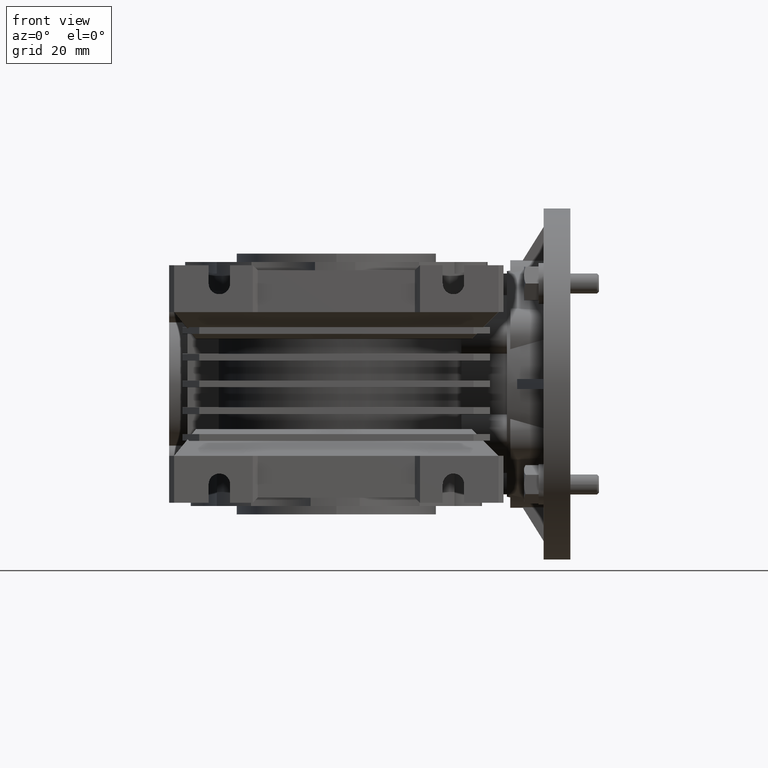
[diagram: clean part render]
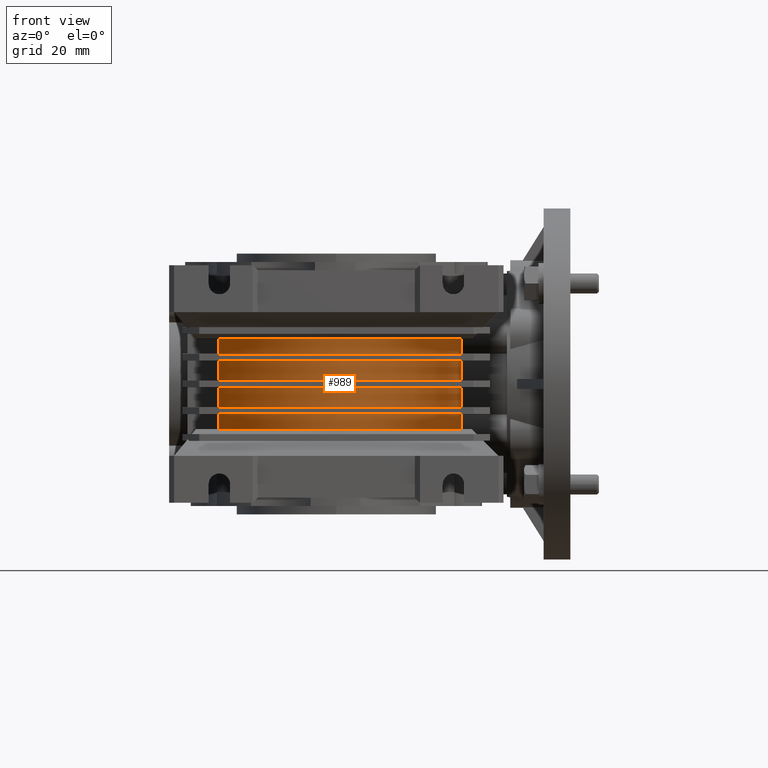
[diagram: same view with one face highlighted and labeled with its STEP entity id]
A machine part, front view. The second image highlights one B-rep face of the part: STEP entity #989.
In plain terms, the highlighted cylindrical surface (partial cylindrical patch) has radius 37.5 mm, axis along (0, 0, 1).
Its self-contained STEP definition (entity closure, byte-faithful):
#34 = CARTESIAN_POINT ( 'NONE',  ( 33.89242612881256633, 16.05101986730154806, -12.48156505676057648 ) ) ;
#349 = ORIENTED_EDGE ( 'NONE', *, *, #14885, .T. ) ;
#629 = ORIENTED_EDGE ( 'NONE', *, *, #16727, .T. ) ;
#703 = CARTESIAN_POINT ( 'NONE',  ( 0.000000000000000000, 0.000000000000000000, 7.000000000000000000 ) ) ;
#859 = DIRECTION ( 'NONE',  ( 0.000000000000000000, 0.000000000000000000, -1.000000000000000000 ) ) ;
#901 = CARTESIAN_POINT ( 'NONE',  ( 37.15022514692150679, 5.109870011364259668, -9.000000000000000000 ) ) ;
#989 = ADVANCED_FACE ( 'NONE', ( #15022 ), #14862, .T. ) ;
#1027 = EDGE_CURVE ( 'NONE', #3531, #28164, #2105, .T. ) ;
#1144 = EDGE_CURVE ( 'NONE', #10015, #4734, #4898, .T. ) ;
#1167 = ORIENTED_EDGE ( 'NONE', *, *, #11697, .T. ) ;
#1199 = CARTESIAN_POINT ( 'NONE',  ( 37.15022514692150679, 5.109870011364259668, 7.000000000000000000 ) ) ;
#1200 = ORIENTED_EDGE ( 'NONE', *, *, #8996, .T. ) ;
#1257 = CARTESIAN_POINT ( 'NONE',  ( 35.95991201780260127, 10.63693701999567587, -11.92872795283150467 ) ) ;
#1411 = CARTESIAN_POINT ( 'NONE',  ( 35.55815069893402836, 11.91214390065728956, -10.28771182583595589 ) ) ;
#2016 = DIRECTION ( 'NONE',  ( 0.000000000000000000, 1.000000000000000000, 0.000000000000000000 ) ) ;
#2043 = CARTESIAN_POINT ( 'NONE',  ( 35.49857564229709084, 12.08880108431705835, 10.14265214825106831 ) ) ;
#2105 = B_SPLINE_CURVE_WITH_KNOTS ( 'NONE', 3,
 ( #8837, #3727, #10712, #13020, #1411, #15646, #15798, #22460, #20125, #27577, #1257, #6362, #20270, #15487, #29881, #22618 ),
 .UNSPECIFIED., .F., .F.,
 ( 4, 2, 2, 2, 2, 2, 2, 4 ),
 ( 7.757919228897728493E-18, 0.001413248006565914240, 0.002119872009848870927, 0.002826496013131827613, 0.003533120016414784299, 0.004239744019697740986, 0.004946368022980697672, 0.005652992026263655226 ),
 .UNSPECIFIED. ) ;
#2192 = DIRECTION ( 'NONE',  ( 0.000000000000000000, 0.000000000000000000, 1.000000000000000000 ) ) ;
#2290 = AXIS2_PLACEMENT_3D ( 'NONE', #11957, #2192, #14098 ) ;
#2336 = CARTESIAN_POINT ( 'NONE',  ( 34.69589230331634155, 14.23211453964517226, -8.148378081426217889 ) ) ;
#2349 = VERTEX_POINT ( 'NONE', #24317 ) ;
#2397 = CARTESIAN_POINT ( 'NONE',  ( -35.17456467392309349, -13.00000000000000000, -39.00000000000000000 ) ) ;
#2451 = VERTEX_POINT ( 'NONE', #7327 ) ;
#2453 = ORIENTED_EDGE ( 'NONE', *, *, #20707, .T. ) ;
#2750 = VECTOR ( 'NONE', #24543, 1000.000000000000000 ) ;
#2813 = ORIENTED_EDGE ( 'NONE', *, *, #14395, .T. ) ;
#2929 = ORIENTED_EDGE ( 'NONE', *, *, #1144, .T. ) ;
#3173 = VERTEX_POINT ( 'NONE', #9515 ) ;
#3251 = CARTESIAN_POINT ( 'NONE',  ( 0.000000000000000000, 0.000000000000000000, -9.000000000000000000 ) ) ;
#3403 = EDGE_CURVE ( 'NONE', #28804, #6489, #14746, .T. ) ;
#3405 = VECTOR ( 'NONE', #11360, 1000.000000000000000 ) ;
#3421 = DIRECTION ( 'NONE',  ( 0.000000000000000000, 0.000000000000000000, 1.000000000000000000 ) ) ;
#3494 = VERTEX_POINT ( 'NONE', #20001 ) ;
#3528 = DIRECTION ( 'NONE',  ( 0.000000000000000000, 0.000000000000000000, -1.000000000000000000 ) ) ;
#3531 = VERTEX_POINT ( 'NONE', #23253 ) ;
#3651 = EDGE_CURVE ( 'NONE', #2349, #28466, #26173, .T. ) ;
#3727 = CARTESIAN_POINT ( 'NONE',  ( 35.16156437133553680, 13.04288750982106926, -9.530578590643933978 ) ) ;
#3902 = CARTESIAN_POINT ( 'NONE',  ( 35.96028034577820875, 10.63569409700594370, 11.93113689730407323 ) ) ;
#3943 = CARTESIAN_POINT ( 'NONE',  ( -35.17456467392309349, -13.00000000000000000, -39.00000000000000000 ) ) ;
#4017 = LINE ( 'NONE', #13006, #17557 ) ;
#4061 = CARTESIAN_POINT ( 'NONE',  ( 35.72032140778882336, 11.41630713474472891, 10.77487343531873698 ) ) ;
#4249 = DIRECTION ( 'NONE',  ( 0.000000000000000000, 0.000000000000000000, -1.000000000000000000 ) ) ;
#4326 = ORIENTED_EDGE ( 'NONE', *, *, #5702, .T. ) ;
#4363 = CARTESIAN_POINT ( 'NONE',  ( 34.69072034355139067, 14.24480793710368687, 8.189602473464258736 ) ) ;
#4511 = CARTESIAN_POINT ( 'NONE',  ( 35.05738964798479174, 13.31301498664726068, 4.141870922106480002 ) ) ;
#4693 = CARTESIAN_POINT ( 'NONE',  ( 0.000000000000000000, 0.000000000000000000, -13.50000000000000000 ) ) ;
#4734 = VERTEX_POINT ( 'NONE', #30580 ) ;
#4824 = VERTEX_POINT ( 'NONE', #5649 ) ;
#4827 = ORIENTED_EDGE ( 'NONE', *, *, #3403, .T. ) ;
#4898 = CIRCLE ( 'NONE', #15789, 37.50000000000000000 ) ;
#4969 = CARTESIAN_POINT ( 'NONE',  ( 37.15022514692150679, 5.109870011364259668, -39.00000000000000000 ) ) ;
#5003 = DIRECTION ( 'NONE',  ( 0.000000000000000000, 1.000000000000000000, 0.000000000000000000 ) ) ;
#5406 = DIRECTION ( 'NONE',  ( 0.000000000000000000, 1.000000000000000000, 0.000000000000000000 ) ) ;
#5502 = EDGE_CURVE ( 'NONE', #28804, #25812, #25111, .T. ) ;
#5626 = VERTEX_POINT ( 'NONE', #16873 ) ;
#5649 = CARTESIAN_POINT ( 'NONE',  ( 35.00000000000000000, 13.46291201783625979, -13.50000000000000000 ) ) ;
#5702 = EDGE_CURVE ( 'NONE', #20425, #2451, #27744, .T. ) ;
#6166 = EDGE_LOOP ( 'NONE', ( #2813, #9628, #19453, #9327, #25429, #13393, #1167, #18504, #4827, #12619, #9269, #629, #349, #19213, #16539, #1200, #14790, #2453, #12387, #2929, #27586, #4326 ) ) ;
#6198 = B_SPLINE_CURVE_WITH_KNOTS ( 'NONE', 3,
 ( #25419, #23244, #18131, #3902, #6234, #25268, #6835, #4061, #22943, #20766, #2043, #13954, #16264, #8712 ),
 .UNSPECIFIED., .F., .F.,
 ( 4, 2, 2, 2, 2, 2, 4 ),
 ( 0.000000000000000000, 0.001412082173249469942, 0.002118123259874203721, 0.002824164346498937283, 0.003530205433123671278, 0.004236246519748404840, 0.005648328692997871096 ),
 .UNSPECIFIED. ) ;
#6234 = CARTESIAN_POINT ( 'NONE',  ( 35.92752693309934386, 10.74611831155798569, 11.72052232175435726 ) ) ;
#6320 = CARTESIAN_POINT ( 'NONE',  ( 36.09955730635830662, 10.15243627337560106, 13.50000000000000000 ) ) ;
#6362 = CARTESIAN_POINT ( 'NONE',  ( 36.01529267520127320, 10.44788950051885834, -12.35723115216990031 ) ) ;
#6489 = VERTEX_POINT ( 'NONE', #12781 ) ;
#6754 = DIRECTION ( 'NONE',  ( 0.000000000000000000, 0.000000000000000000, 1.000000000000000000 ) ) ;
#6777 = VECTOR ( 'NONE', #23631, 1000.000000000000000 ) ;
#6835 = CARTESIAN_POINT ( 'NONE',  ( 35.81232855723818176, 11.12432260315126342, 11.13349224682115590 ) ) ;
#6961 = EDGE_CURVE ( 'NONE', #20254, #3173, #6198, .T. ) ;
#6985 = CARTESIAN_POINT ( 'NONE',  ( 35.16769276118831300, 13.01864464574352098, -1.167012885272258549 ) ) ;
#7177 = DIRECTION ( 'NONE',  ( 0.000000000000000000, 0.000000000000000000, 1.000000000000000000 ) ) ;
#7327 = CARTESIAN_POINT ( 'NONE',  ( 37.15022514692155653, 5.109870011364259668, -7.000000000000000000 ) ) ;
#8712 = CARTESIAN_POINT ( 'NONE',  ( 35.00000000000000000, 13.46291201783626512, 9.370858218616426427 ) ) ;
#8837 = CARTESIAN_POINT ( 'NONE',  ( 35.00000000000000000, 13.46291201783626690, -9.370858218616426427 ) ) ;
#8855 = DIRECTION ( 'NONE',  ( 0.000000000000000000, 0.000000000000000000, -1.000000000000000000 ) ) ;
#8874 = AXIS2_PLACEMENT_3D ( 'NONE', #24319, #10249, #19661 ) ;
#8996 = EDGE_CURVE ( 'NONE', #28466, #13030, #9551, .T. ) ;
#9039 = DIRECTION ( 'NONE',  ( 0.000000000000000000, 0.000000000000000000, -1.000000000000000000 ) ) ;
#9164 = CARTESIAN_POINT ( 'NONE',  ( 34.14110850185635115, 15.52010620328923984, 11.44954801886963125 ) ) ;
#9269 = ORIENTED_EDGE ( 'NONE', *, *, #6961, .F. ) ;
#9327 = ORIENTED_EDGE ( 'NONE', *, *, #14993, .T. ) ;
#9469 = CARTESIAN_POINT ( 'NONE',  ( 35.14557603054157653, 13.07922908059671840, 2.381837202293809685 ) ) ;
#9515 = CARTESIAN_POINT ( 'NONE',  ( 35.00000000000000000, 13.46291201783626512, 9.370858218616426427 ) ) ;
#9551 = CIRCLE ( 'NONE', #13513, 37.50000000000000000 ) ;
#9617 = CARTESIAN_POINT ( 'NONE',  ( 33.61718120506814245, 16.61731409782018076, -13.50000000000000000 ) ) ;
#9628 = ORIENTED_EDGE ( 'NONE', *, *, #27224, .T. ) ;
#9704 = VERTEX_POINT ( 'NONE', #901 ) ;
#10015 = VERTEX_POINT ( 'NONE', #11289 ) ;
#10249 = DIRECTION ( 'NONE',  ( 0.000000000000000000, 0.000000000000000000, 1.000000000000000000 ) ) ;
#10712 = CARTESIAN_POINT ( 'NONE',  ( 35.30522669003146774, 12.64691140396953983, -9.742277544084746665 ) ) ;
#10837 = AXIS2_PLACEMENT_3D ( 'NONE', #10905, #15368, #20620 ) ;
#10905 = CARTESIAN_POINT ( 'NONE',  ( 0.000000000000000000, 0.000000000000000000, 13.50000000000000000 ) ) ;
#10959 = AXIS2_PLACEMENT_3D ( 'NONE', #24617, #3421, #22456 ) ;
#11037 = LINE ( 'NONE', #27887, #6777 ) ;
#11221 = EDGE_CURVE ( 'NONE', #4734, #20425, #4017, .T. ) ;
#11289 = CARTESIAN_POINT ( 'NONE',  ( 37.15022514692150679, 5.109870011364259668, -1.000000000000000000 ) ) ;
#11360 = DIRECTION ( 'NONE',  ( 0.000000000000000000, 0.000000000000000000, -1.000000000000000000 ) ) ;
#11424 = EDGE_CURVE ( 'NONE', #13030, #5626, #24853, .T. ) ;
#11591 = VERTEX_POINT ( 'NONE', #11693 ) ;
#11652 = CARTESIAN_POINT ( 'NONE',  ( 34.87613211072676478, 13.78162061497119772, 6.476608614098061878 ) ) ;
#11693 = CARTESIAN_POINT ( 'NONE',  ( -35.17456467392309349, -13.00000000000000000, -13.50000000000000000 ) ) ;
#11697 = EDGE_CURVE ( 'NONE', #4824, #25812, #26017, .T. ) ;
#11867 = DIRECTION ( 'NONE',  ( 0.000000000000000000, 0.000000000000000000, -1.000000000000000000 ) ) ;
#11957 = CARTESIAN_POINT ( 'NONE',  ( 0.000000000000000000, 0.000000000000000000, 1.000000000000000000 ) ) ;
#12387 = ORIENTED_EDGE ( 'NONE', *, *, #13853, .T. ) ;
#12475 = CARTESIAN_POINT ( 'NONE',  ( 33.61718120506814245, 16.61731409782018076, 13.50000000000000000 ) ) ;
#12619 = ORIENTED_EDGE ( 'NONE', *, *, #21691, .T. ) ;
#12754 = AXIS2_PLACEMENT_3D ( 'NONE', #3251, #24444, #5406 ) ;
#12781 = CARTESIAN_POINT ( 'NONE',  ( 35.00000000000000000, 13.46291201783625979, 13.50000000000000000 ) ) ;
#12945 = CIRCLE ( 'NONE', #19345, 37.50000000000000000 ) ;
#13006 = CARTESIAN_POINT ( 'NONE',  ( -35.17456467392309349, -13.00000000000000000, -39.00000000000000000 ) ) ;
#13020 = CARTESIAN_POINT ( 'NONE',  ( 35.49756179830772851, 12.09179293152651447, -10.14025004590549806 ) ) ;
#13030 = VERTEX_POINT ( 'NONE', #29664 ) ;
#13063 = EDGE_CURVE ( 'NONE', #18448, #2349, #14637, .T. ) ;
#13121 = EDGE_CURVE ( 'NONE', #14458, #11591, #23600, .T. ) ;
#13393 = ORIENTED_EDGE ( 'NONE', *, *, #22894, .T. ) ;
#13433 = VECTOR ( 'NONE', #4249, 1000.000000000000000 ) ;
#13477 = DIRECTION ( 'NONE',  ( 0.000000000000000000, 0.000000000000000000, -1.000000000000000000 ) ) ;
#13513 = AXIS2_PLACEMENT_3D ( 'NONE', #703, #859, #19582 ) ;
#13534 = VERTEX_POINT ( 'NONE', #16290 ) ;
#13788 = CARTESIAN_POINT ( 'NONE',  ( 0.000000000000000000, 0.000000000000000000, -1.000000000000000000 ) ) ;
#13809 = CARTESIAN_POINT ( 'NONE',  ( 35.17471363821096020, 12.99959694223114681, -0.5734847019434973214 ) ) ;
#13853 = EDGE_CURVE ( 'NONE', #13534, #10015, #18123, .T. ) ;
#13880 = CARTESIAN_POINT ( 'NONE',  ( -35.17456467392309349, -13.00000000000000000, -9.000000000000000000 ) ) ;
#13885 = VECTOR ( 'NONE', #3528, 1000.000000000000000 ) ;
#13954 = CARTESIAN_POINT ( 'NONE',  ( 35.30721993537191850, 12.64128781365139531, 9.745802789130758370 ) ) ;
#14097 = CARTESIAN_POINT ( 'NONE',  ( 34.53408778647764166, 14.62483391539066524, 9.298295344477486069 ) ) ;
#14098 = DIRECTION ( 'NONE',  ( 0.000000000000000000, 1.000000000000000000, 0.000000000000000000 ) ) ;
#14395 = EDGE_CURVE ( 'NONE', #2451, #9704, #15277, .T. ) ;
#14458 = VERTEX_POINT ( 'NONE', #13880 ) ;
#14637 = CIRCLE ( 'NONE', #18584, 37.50000000000000000 ) ;
#14746 = CIRCLE ( 'NONE', #10837, 37.50000000000000000 ) ;
#14790 = ORIENTED_EDGE ( 'NONE', *, *, #11424, .T. ) ;
#14862 = CYLINDRICAL_SURFACE ( 'NONE', #8874, 37.50000000000000000 ) ;
#14885 = EDGE_CURVE ( 'NONE', #3494, #18448, #25305, .T. ) ;
#14906 = CIRCLE ( 'NONE', #30251, 37.50000000000000000 ) ;
#14993 = EDGE_CURVE ( 'NONE', #11591, #28164, #12945, .T. ) ;
#15022 = FACE_OUTER_BOUND ( 'NONE', #6166, .T. ) ;
#15116 = CARTESIAN_POINT ( 'NONE',  ( 33.61718120506814245, 16.61731409782018076, -13.50000000000000000 ) ) ;
#15277 = LINE ( 'NONE', #24266, #13885 ) ;
#15368 = DIRECTION ( 'NONE',  ( 0.000000000000000000, 0.000000000000000000, -1.000000000000000000 ) ) ;
#15487 = CARTESIAN_POINT ( 'NONE',  ( 36.07562973437583054, 10.23736025576940811, -13.03009449692549282 ) ) ;
#15646 = CARTESIAN_POINT ( 'NONE',  ( 35.66888264940958919, 11.57635797566388547, -10.60315026938075000 ) ) ;
#15789 = AXIS2_PLACEMENT_3D ( 'NONE', #13788, #25546, #2016 ) ;
#15798 = CARTESIAN_POINT ( 'NONE',  ( 35.71933007890488199, 11.41940692847128069, -10.77142597994924778 ) ) ;
#15908 = CARTESIAN_POINT ( 'NONE',  ( 0.000000000000000000, 0.000000000000000000, 13.50000000000000000 ) ) ;
#15973 = CARTESIAN_POINT ( 'NONE',  ( 33.90482604555326418, 16.03540244420586092, 12.49209945042362513 ) ) ;
#16029 = CARTESIAN_POINT ( 'NONE',  ( 0.000000000000000000, 0.000000000000000000, 9.000000000000000000 ) ) ;
#16264 = CARTESIAN_POINT ( 'NONE',  ( 35.16142995455393816, 13.04323695779711478, 9.530445708015230721 ) ) ;
#16290 = CARTESIAN_POINT ( 'NONE',  ( 37.15022514692155653, 5.109870011364259668, 1.000000000000000000 ) ) ;
#16539 = ORIENTED_EDGE ( 'NONE', *, *, #3651, .T. ) ;
#16599 = DIRECTION ( 'NONE',  ( 0.000000000000000000, 1.000000000000000000, 0.000000000000000000 ) ) ;
#16699 = CARTESIAN_POINT ( 'NONE',  ( -35.17456467392309349, -13.00000000000000000, 9.000000000000000000 ) ) ;
#16727 = EDGE_CURVE ( 'NONE', #20254, #3494, #14906, .T. ) ;
#16873 = CARTESIAN_POINT ( 'NONE',  ( -35.17456467392309349, -13.00000000000000000, 1.000000000000000000 ) ) ;
#17396 = CARTESIAN_POINT ( 'NONE',  ( -35.17456467392309349, -13.00000000000000000, -39.00000000000000000 ) ) ;
#17557 = VECTOR ( 'NONE', #13477, 1000.000000000000000 ) ;
#17997 = DIRECTION ( 'NONE',  ( 0.000000000000000000, 1.000000000000000000, 0.000000000000000000 ) ) ;
#18123 = LINE ( 'NONE', #28185, #26731 ) ;
#18131 = CARTESIAN_POINT ( 'NONE',  ( 36.04355327526685215, 10.35138991542680387, 12.57678755808587567 ) ) ;
#18448 = VERTEX_POINT ( 'NONE', #16699 ) ;
#18504 = ORIENTED_EDGE ( 'NONE', *, *, #5502, .F. ) ;
#18584 = AXIS2_PLACEMENT_3D ( 'NONE', #16029, #6754, #28259 ) ;
#18595 = CARTESIAN_POINT ( 'NONE',  ( 34.92977650152839431, 13.64465053903266956, 5.894929403383192046 ) ) ;
#18742 = CARTESIAN_POINT ( 'NONE',  ( 34.24294801743089067, 15.28827623052919371, -10.89395254908822430 ) ) ;
#19213 = ORIENTED_EDGE ( 'NONE', *, *, #13063, .T. ) ;
#19345 = AXIS2_PLACEMENT_3D ( 'NONE', #4693, #7177, #16599 ) ;
#19453 = ORIENTED_EDGE ( 'NONE', *, *, #13121, .T. ) ;
#19582 = DIRECTION ( 'NONE',  ( 0.000000000000000000, 1.000000000000000000, 0.000000000000000000 ) ) ;
#19661 = DIRECTION ( 'NONE',  ( 0.000000000000000000, 1.000000000000000000, 0.000000000000000000 ) ) ;
#20001 = CARTESIAN_POINT ( 'NONE',  ( -35.17456467392309349, -13.00000000000000000, 13.50000000000000000 ) ) ;
#20125 = CARTESIAN_POINT ( 'NONE',  ( 35.85281475368015691, 10.99282515743413668, -11.31841547643791834 ) ) ;
#20254 = VERTEX_POINT ( 'NONE', #6320 ) ;
#20270 = CARTESIAN_POINT ( 'NONE',  ( 36.03833944144661672, 10.36786844251317952, -12.57747518729063074 ) ) ;
#20425 = VERTEX_POINT ( 'NONE', #26835 ) ;
#20620 = DIRECTION ( 'NONE',  ( 0.000000000000000000, 1.000000000000000000, 0.000000000000000000 ) ) ;
#20707 = EDGE_CURVE ( 'NONE', #5626, #13534, #29992, .T. ) ;
#20766 = CARTESIAN_POINT ( 'NONE',  ( 35.55814950188204193, 11.91215784785712550, 10.28764463728533407 ) ) ;
#21217 = CARTESIAN_POINT ( 'NONE',  ( 34.94002210487023774, 13.62177970399185511, -5.879581657830513564 ) ) ;
#21257 = CARTESIAN_POINT ( 'NONE',  ( 0.000000000000000000, 0.000000000000000000, -13.50000000000000000 ) ) ;
#21369 = CARTESIAN_POINT ( 'NONE',  ( 35.17425958664846775, 13.00082548507995028, 1.202986057375432738 ) ) ;
#21691 = EDGE_CURVE ( 'NONE', #6489, #3173, #30525, .T. ) ;
#22142 = DIRECTION ( 'NONE',  ( 0.000000000000000000, 0.000000000000000000, 1.000000000000000000 ) ) ;
#22456 = DIRECTION ( 'NONE',  ( 0.000000000000000000, 1.000000000000000000, 0.000000000000000000 ) ) ;
#22460 = CARTESIAN_POINT ( 'NONE',  ( 35.81129627017783434, 11.12764374579467841, -11.12906126870554857 ) ) ;
#22544 = VECTOR ( 'NONE', #9039, 1000.000000000000000 ) ;
#22563 = AXIS2_PLACEMENT_3D ( 'NONE', #21257, #22142, #5003 ) ;
#22618 = CARTESIAN_POINT ( 'NONE',  ( 36.09955730635830662, 10.15243627337560106, -13.50000000000000000 ) ) ;
#22894 = EDGE_CURVE ( 'NONE', #3531, #4824, #11037, .T. ) ;
#22943 = CARTESIAN_POINT ( 'NONE',  ( 35.66931227557048345, 11.57504481107067207, 10.60443815601563067 ) ) ;
#23244 = CARTESIAN_POINT ( 'NONE',  ( 36.08027532124638981, 10.22099825276502472, 13.02775973823036004 ) ) ;
#23246 = CARTESIAN_POINT ( 'NONE',  ( 35.13878946842794448, 13.09645743134307239, -2.356873582422428726 ) ) ;
#23253 = CARTESIAN_POINT ( 'NONE',  ( 35.00000000000000000, 13.46291201783626690, -9.370858218616426427 ) ) ;
#23396 = CARTESIAN_POINT ( 'NONE',  ( 35.11679164116430485, 13.15552752576416395, -2.954313359337027212 ) ) ;
#23413 = CARTESIAN_POINT ( 'NONE',  ( 35.00000000000000000, 13.46291201783627933, -39.00000000000000000 ) ) ;
#23539 = CARTESIAN_POINT ( 'NONE',  ( 35.02847120767695088, 13.38969915469676941, -4.722982987806104482 ) ) ;
#23600 = LINE ( 'NONE', #2397, #28976 ) ;
#23631 = DIRECTION ( 'NONE',  ( 0.000000000000000000, 0.000000000000000000, -1.000000000000000000 ) ) ;
#23691 = CARTESIAN_POINT ( 'NONE',  ( 35.02039110982743608, 13.41036842498252390, 4.727169405195486007 ) ) ;
#24266 = CARTESIAN_POINT ( 'NONE',  ( 37.15022514692150679, 5.109870011364259668, -39.00000000000000000 ) ) ;
#24317 = CARTESIAN_POINT ( 'NONE',  ( 37.15022514692155653, 5.109870011364259668, 9.000000000000000000 ) ) ;
#24319 = CARTESIAN_POINT ( 'NONE',  ( 0.000000000000000000, 0.000000000000000000, -39.00000000000000000 ) ) ;
#24374 = DIRECTION ( 'NONE',  ( 0.000000000000000000, 0.000000000000000000, -1.000000000000000000 ) ) ;
#24444 = DIRECTION ( 'NONE',  ( 0.000000000000000000, 0.000000000000000000, -1.000000000000000000 ) ) ;
#24543 = DIRECTION ( 'NONE',  ( 0.000000000000000000, 0.000000000000000000, -1.000000000000000000 ) ) ;
#24601 = CIRCLE ( 'NONE', #12754, 37.50000000000000000 ) ;
#24617 = CARTESIAN_POINT ( 'NONE',  ( 0.000000000000000000, 0.000000000000000000, -7.000000000000000000 ) ) ;
#24832 = CARTESIAN_POINT ( 'NONE',  ( 36.09955730635830662, 10.15243627337560106, -13.50000000000000000 ) ) ;
#24853 = LINE ( 'NONE', #17396, #2750 ) ;
#25111 = B_SPLINE_CURVE_WITH_KNOTS ( 'NONE', 3,
 ( #25568, #15973, #9164, #14097, #4363, #11652, #18595, #23691, #4511, #9469, #21369, #13809, #6985, #23246, #23396, #23539, #21217, #2336, #30511, #18742, #28192, #34, #28338, #9617 ),
 .UNSPECIFIED., .F., .F.,
 ( 4, 2, 2, 2, 2, 2, 2, 2, 2, 2, 2, 4 ),
 ( 1.262897753262582852E-17, 0.003543378593054626047, 0.007086757186109239950, 0.008858446482636544300, 0.01063013577916385212, 0.01417351437221846255, 0.01594520366874576864, 0.01771689296527307472, 0.02126027155832769036, 0.02480365015138230253, 0.02657533944790960861, 0.02834702874443690776 ),
 .UNSPECIFIED. ) ;
#25268 = CARTESIAN_POINT ( 'NONE',  ( 35.85363722866890157, 10.99012956109197248, 11.32253836024176152 ) ) ;
#25305 = LINE ( 'NONE', #3943, #13433 ) ;
#25419 = CARTESIAN_POINT ( 'NONE',  ( 36.09955730635830662, 10.15243627337560106, 13.50000000000000000 ) ) ;
#25429 = ORIENTED_EDGE ( 'NONE', *, *, #1027, .F. ) ;
#25546 = DIRECTION ( 'NONE',  ( 0.000000000000000000, 0.000000000000000000, -1.000000000000000000 ) ) ;
#25568 = CARTESIAN_POINT ( 'NONE',  ( 33.61718120506814245, 16.61731409782018076, 13.50000000000000000 ) ) ;
#25812 = VERTEX_POINT ( 'NONE', #15116 ) ;
#26017 = CIRCLE ( 'NONE', #22563, 37.50000000000000000 ) ;
#26173 = LINE ( 'NONE', #4969, #3405 ) ;
#26731 = VECTOR ( 'NONE', #8855, 1000.000000000000000 ) ;
#26835 = CARTESIAN_POINT ( 'NONE',  ( -35.17456467392309349, -13.00000000000000000, -7.000000000000000000 ) ) ;
#27224 = EDGE_CURVE ( 'NONE', #9704, #14458, #24601, .T. ) ;
#27577 = CARTESIAN_POINT ( 'NONE',  ( 35.92735054669032735, 10.74672105336559014, -11.71926923913032148 ) ) ;
#27586 = ORIENTED_EDGE ( 'NONE', *, *, #11221, .T. ) ;
#27744 = CIRCLE ( 'NONE', #10959, 37.50000000000000000 ) ;
#27887 = CARTESIAN_POINT ( 'NONE',  ( 35.00000000000000000, 13.46291201783627933, -39.00000000000000000 ) ) ;
#28164 = VERTEX_POINT ( 'NONE', #24832 ) ;
#28185 = CARTESIAN_POINT ( 'NONE',  ( 37.15022514692150679, 5.109870011364259668, -39.00000000000000000 ) ) ;
#28192 = CARTESIAN_POINT ( 'NONE',  ( 34.13328884529743590, 15.53223680868338796, -11.43117142187026936 ) ) ;
#28259 = DIRECTION ( 'NONE',  ( 0.000000000000000000, 1.000000000000000000, 0.000000000000000000 ) ) ;
#28338 = CARTESIAN_POINT ( 'NONE',  ( 33.76097951505197159, 16.32640704658119546, -12.99613420697407662 ) ) ;
#28466 = VERTEX_POINT ( 'NONE', #1199 ) ;
#28804 = VERTEX_POINT ( 'NONE', #12475 ) ;
#28976 = VECTOR ( 'NONE', #11867, 1000.000000000000000 ) ;
#29664 = CARTESIAN_POINT ( 'NONE',  ( -35.17456467392309349, -13.00000000000000000, 7.000000000000000000 ) ) ;
#29881 = CARTESIAN_POINT ( 'NONE',  ( 36.08990581527202579, 10.18675459325267418, -13.26362274679688191 ) ) ;
#29992 = CIRCLE ( 'NONE', #2290, 37.50000000000000000 ) ;
#30251 = AXIS2_PLACEMENT_3D ( 'NONE', #15908, #24374, #17997 ) ;
#30511 = CARTESIAN_POINT ( 'NONE',  ( 34.54026220587574869, 14.61040050276188929, -9.260573015289267573 ) ) ;
#30525 = LINE ( 'NONE', #23413, #22544 ) ;
#30580 = CARTESIAN_POINT ( 'NONE',  ( -35.17456467392309349, -13.00000000000000000, -1.000000000000000000 ) ) ;